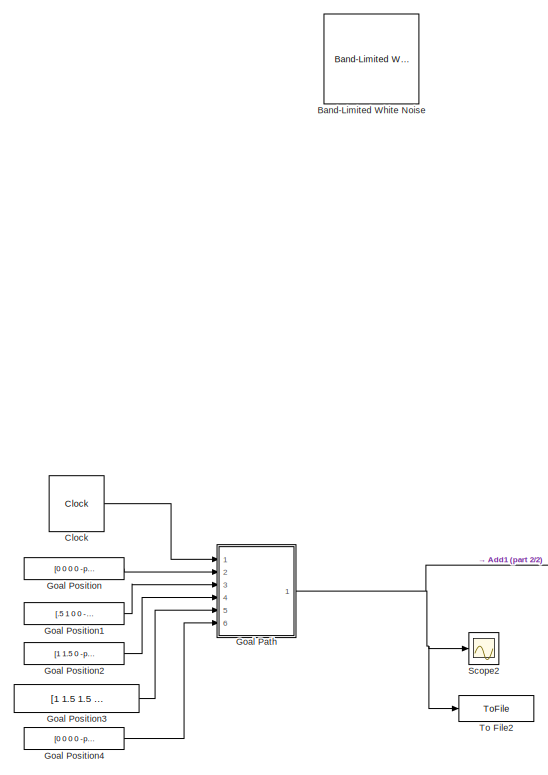
[diagram: root canvas - part 1/2, middle left region]
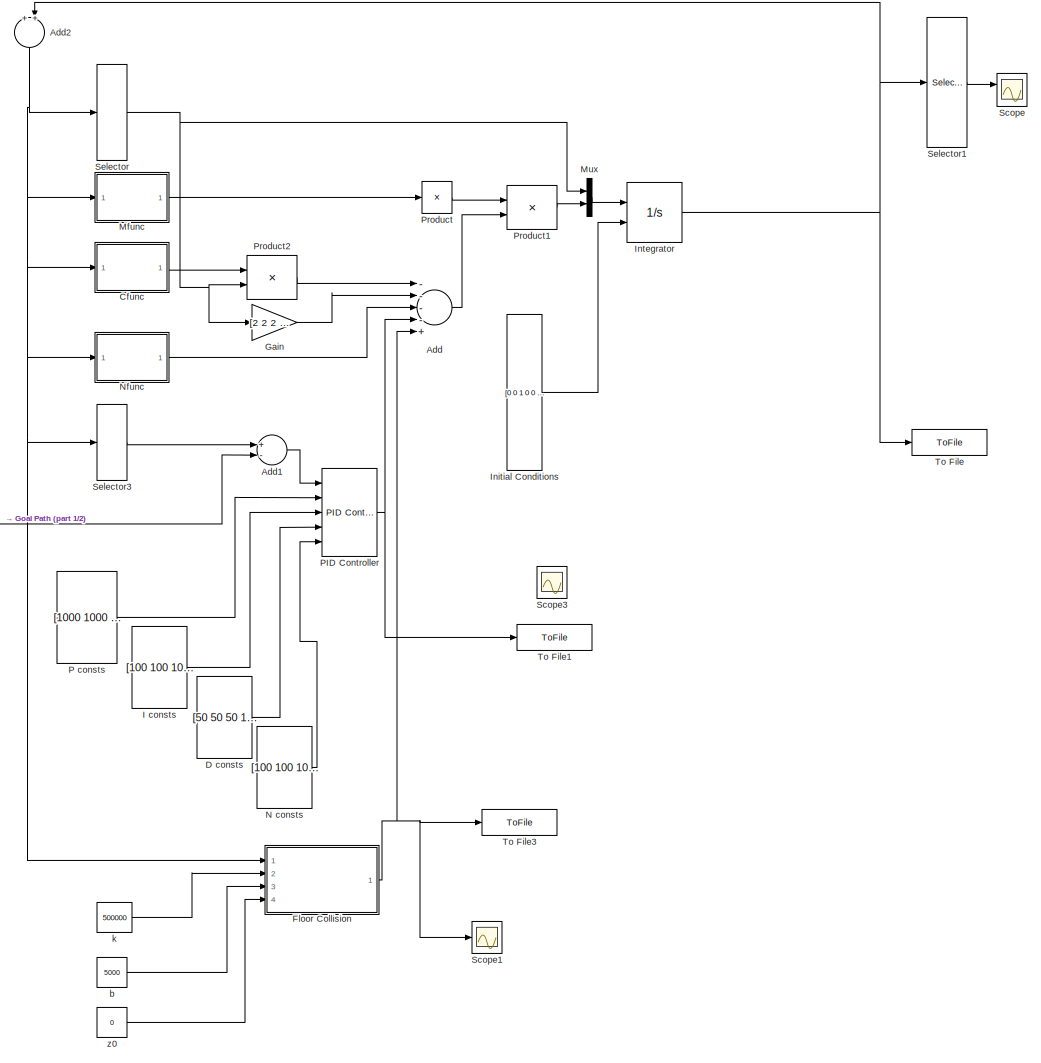
[diagram: root canvas - part 2/2, right side, full height]
MODEL slx_dd0f3a73de73
KIND model
CONFIG AbsTol = auto
CONFIG EnableMultiTasking = off
CONFIG FixedStep = auto
CONFIG MaxStep = auto
CONFIG MinStep = auto
CONFIG RelTol = 1e-3
CONFIG SampleTimeConstraint = Unconstrained
CONFIG Solver = VariableStepAuto
CONFIG SolverName = VariableStepAuto
CONFIG StartTime = 0.0
CONFIG StopTime = 10.0
BLOCK [Sum] Add
  InputSameDT = off
  Inputs = ----+
  OutDataTypeStr = Inherit: Inherit via internal rule
  Ports = [5, 1]
  SaturateOnIntegerOverflow = off
BLOCK [Sum] Add1
  InputSameDT = off
  Inputs = +-
  OutDataTypeStr = Inherit: Inherit via internal rule
  Ports = [2, 1]
  SaturateOnIntegerOverflow = off
BLOCK [Sum] Add2
  InputSameDT = off
  OutDataTypeStr = Inherit: Inherit via internal rule
  Ports = [2, 1]
  SaturateOnIntegerOverflow = off
BLOCK [Reference] Band-Limited White Noise  REF=simulink/Sources/Band-Limited
White Noise
  Ports = [0, 1]
  SourceBlock = simulink/Sources/Band-Limited\nWhite Noise
  SourceProductBaseCode = SL
  SourceProductName = Simulink
  SourceType = Band-Limited White Noise.
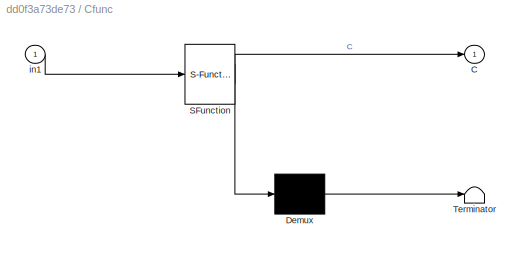
BLOCK [SubSystem] Cfunc
  ErrorFcn = Stateflow.Translate.translate
  PermitHierarchicalResolution = ExplicitOnly
  Ports = [1, 1]
  RequestExecContextInheritance = off
  SFBlockType = MATLAB Function
  TreatAsAtomicUnit = on
BLOCK [Demux] Cfunc/ Demux 
  Outputs = 1
  Ports = [1, 1]
BLOCK [S-Function] Cfunc/ SFunction 
  EnableBusSupport = on
  FunctionName = sf_sfun
  PortCounts = [1 2]
  Ports = [1, 2]
  SFcnIsStateOwnerBlock = off
  SFunctionDeploymentMode = off
  Tag = Stateflow S-Function mobilebot_Model 1
BLOCK [Terminator] Cfunc/ Terminator 
BLOCK [Outport] Cfunc/C
  IconDisplay = Port number
BLOCK [Inport] Cfunc/in1
  IconDisplay = Port number
BLOCK [Clock] Clock
BLOCK [Constant] D consts
  Value = [50 50 50 10 10 10]'
  VectorParams1D = off
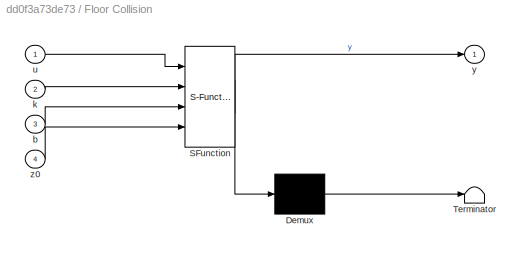
BLOCK [SubSystem] Floor Collision
  ErrorFcn = Stateflow.Translate.translate
  PermitHierarchicalResolution = ExplicitOnly
  Ports = [4, 1]
  RequestExecContextInheritance = off
  SFBlockType = MATLAB Function
  TreatAsAtomicUnit = on
BLOCK [Demux] Floor Collision/ Demux 
  Outputs = 1
  Ports = [1, 1]
BLOCK [S-Function] Floor Collision/ SFunction 
  EnableBusSupport = on
  FunctionName = sf_sfun
  PortCounts = [4 2]
  Ports = [4, 2]
  SFcnIsStateOwnerBlock = off
  SFunctionDeploymentMode = off
  Tag = Stateflow S-Function mobilebot_Model 4
BLOCK [Terminator] Floor Collision/ Terminator 
BLOCK [Inport] Floor Collision/b
  IconDisplay = Port number
  Port = 3
BLOCK [Inport] Floor Collision/k
  IconDisplay = Port number
  Port = 2
BLOCK [Inport] Floor Collision/u
  IconDisplay = Port number
BLOCK [Outport] Floor Collision/y
  IconDisplay = Port number
BLOCK [Inport] Floor Collision/z0
  IconDisplay = Port number
  Port = 4
BLOCK [Gain] Gain
  Gain = [2 2 2 8 8 8]'
  OutDataTypeStr = Inherit: Inherit via internal rule
  ParamDataTypeStr = Inherit: Inherit via internal rule
  SaturateOnIntegerOverflow = off
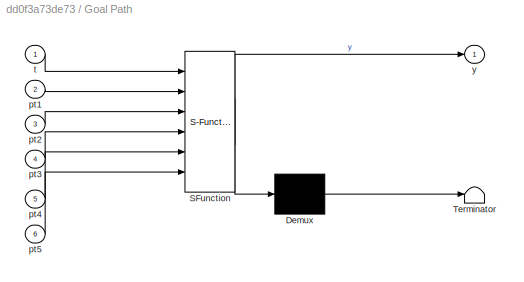
BLOCK [SubSystem] Goal Path
  ErrorFcn = Stateflow.Translate.translate
  PermitHierarchicalResolution = ExplicitOnly
  Ports = [6, 1]
  RequestExecContextInheritance = off
  SFBlockType = MATLAB Function
  TreatAsAtomicUnit = on
BLOCK [Demux] Goal Path/ Demux 
  Outputs = 1
  Ports = [1, 1]
BLOCK [S-Function] Goal Path/ SFunction 
  EnableBusSupport = on
  FunctionName = sf_sfun
  PortCounts = [6 2]
  Ports = [6, 2]
  SFcnIsStateOwnerBlock = off
  SFunctionDeploymentMode = off
  Tag = Stateflow S-Function mobilebot_Model 5
BLOCK [Terminator] Goal Path/ Terminator 
BLOCK [Inport] Goal Path/pt1
  IconDisplay = Port number
  Port = 2
BLOCK [Inport] Goal Path/pt2
  IconDisplay = Port number
  Port = 3
BLOCK [Inport] Goal Path/pt3
  IconDisplay = Port number
  Port = 4
BLOCK [Inport] Goal Path/pt4
  IconDisplay = Port number
  Port = 5
BLOCK [Inport] Goal Path/pt5
  IconDisplay = Port number
  Port = 6
BLOCK [Inport] Goal Path/t
  IconDisplay = Port number
BLOCK [Outport] Goal Path/y
  IconDisplay = Port number
BLOCK [Constant] Goal Position
  Value = [0 0 0 0 -pi/4 pi/4 ]'
  VectorParams1D = off
BLOCK [Constant] Goal Position1
  Value = [.5 1 0 0 -pi/2 pi/2 ]'
  VectorParams1D = off
BLOCK [Constant] Goal Position2
  Value = [1 1.5 0 -pi/3 -pi/3 pi ]'
  VectorParams1D = off
BLOCK [Constant] Goal Position3
  Value = [1 1.5 1.5 pi/2 -3*pi/2 pi/4 ]'
  VectorParams1D = off
BLOCK [Constant] Goal Position4
  Value = [0 0 0 0 -pi/4 pi/4 ]'
  VectorParams1D = off
BLOCK [Constant] I consts
  Value = [100 100 100 50 50 50]'
  VectorParams1D = off
BLOCK [Constant] Initial Conditions
  Value = [0 0 1 0 0 0 0 0 0 0 0 0]'
  VectorParams1D = off
BLOCK [Integrator] Integrator
  InitialConditionSource = external
  Ports = [2, 1]
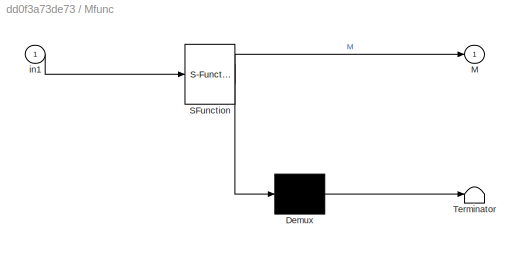
BLOCK [SubSystem] Mfunc
  ErrorFcn = Stateflow.Translate.translate
  PermitHierarchicalResolution = ExplicitOnly
  Ports = [1, 1]
  RequestExecContextInheritance = off
  SFBlockType = MATLAB Function
  TreatAsAtomicUnit = on
BLOCK [Demux] Mfunc/ Demux 
  Outputs = 1
  Ports = [1, 1]
BLOCK [S-Function] Mfunc/ SFunction 
  EnableBusSupport = on
  FunctionName = sf_sfun
  PortCounts = [1 2]
  Ports = [1, 2]
  SFcnIsStateOwnerBlock = off
  SFunctionDeploymentMode = off
  Tag = Stateflow S-Function mobilebot_Model 2
BLOCK [Terminator] Mfunc/ Terminator 
BLOCK [Outport] Mfunc/M
  IconDisplay = Port number
BLOCK [Inport] Mfunc/in1
  IconDisplay = Port number
BLOCK [Mux] Mux
  DisplayOption = bar
  Inputs = 2
  Ports = [2, 1]
BLOCK [Constant] N consts
  Value = [100 100 100 100 100 100]'
  VectorParams1D = off
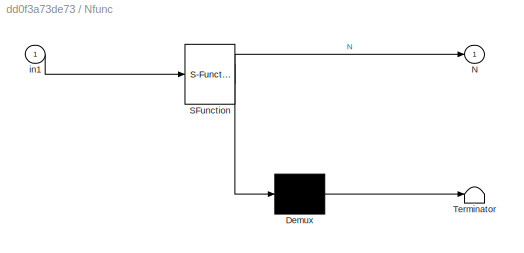
BLOCK [SubSystem] Nfunc
  ErrorFcn = Stateflow.Translate.translate
  PermitHierarchicalResolution = ExplicitOnly
  Ports = [1, 1]
  RequestExecContextInheritance = off
  SFBlockType = MATLAB Function
  TreatAsAtomicUnit = on
BLOCK [Demux] Nfunc/ Demux 
  Outputs = 1
  Ports = [1, 1]
BLOCK [S-Function] Nfunc/ SFunction 
  EnableBusSupport = on
  FunctionName = sf_sfun
  PortCounts = [1 2]
  Ports = [1, 2]
  SFcnIsStateOwnerBlock = off
  SFunctionDeploymentMode = off
  Tag = Stateflow S-Function mobilebot_Model 3
BLOCK [Terminator] Nfunc/ Terminator 
BLOCK [Outport] Nfunc/N
  IconDisplay = Port number
BLOCK [Inport] Nfunc/in1
  IconDisplay = Port number
BLOCK [Constant] P consts
  Value = [1000 1000 1000 200 200 200]'
  VectorParams1D = off
BLOCK [Reference] PID Controller  REF=simulink/Continuous/PID Controller
  Ports = [5, 1]
  SourceBlock = simulink/Continuous/PID Controller
  SourceProductBaseCode = SL
  SourceProductName = Simulink
  SourceType = PID 1dof
BLOCK [Product] Product
  InputSameDT = off
  Inputs = /
  Multiplication = Matrix(*)
  OutDataTypeStr = Inherit: Inherit via internal rule
  Ports = [1, 1]
  RndMeth = Floor
  SaturateOnIntegerOverflow = off
BLOCK [Product] Product1
  InputSameDT = off
  Inputs = **
  Multiplication = Matrix(*)
  OutDataTypeStr = Inherit: Inherit via internal rule
  Ports = [2, 1]
  RndMeth = Floor
  SaturateOnIntegerOverflow = off
BLOCK [Product] Product2
  InputSameDT = off
  Inputs = **
  Multiplication = Matrix(*)
  OutDataTypeStr = Inherit: Inherit via internal rule
  Ports = [2, 1]
  RndMeth = Floor
  SaturateOnIntegerOverflow = off
BLOCK [Scope] Scope
  Floating = off
  NumInputPorts = 2
  Ports = [2]
  ScopeSpecificationString = Simulink.scopes.TimeScopeBlockCfg('CurrentConfiguration', extmgr.ConfigurationSet(extmgr.Configuration('Core','General UI',true),extmgr.Configuration('Core','Source UI',true),extmgr.Configuration('Sources','WiredSimulink',true),extmgr.Configuration('Visuals','Time Domain',true,'SerializedDisplays',{struct('MinYLimReal','-6.13615','MaxYLimReal','4.12733','YLabelReal','','MinYLimMag','0.00000','MaxY...<+1443ch>
BLOCK [Scope] Scope1
  Floating = off
  NumInputPorts = 1
  Ports = [1]
  ScopeSpecificationString = Simulink.scopes.TimeScopeBlockCfg('CurrentConfiguration', extmgr.ConfigurationSet(extmgr.Configuration('Core','General UI',true),extmgr.Configuration('Core','Source UI',true),extmgr.Configuration('Sources','WiredSimulink',true,'DataLoggingVariableName','FloorCollisionData','DataLogging',true,'DataLoggingSaveFormat','Array'),extmgr.Configuration('Visuals','Time Domain',true,'SerializedDisplays',{st...<+1565ch>
BLOCK [Scope] Scope2
  Floating = off
  NumInputPorts = 1
  Ports = [1]
  ScopeSpecificationString = Simulink.scopes.TimeScopeBlockCfg('CurrentConfiguration', extmgr.ConfigurationSet(extmgr.Configuration('Core','General UI',true),extmgr.Configuration('Core','Source UI',true),extmgr.Configuration('Sources','WiredSimulink',true,'DataLoggingVariableName','GoalPathData','DataLogging',true,'DataLoggingSaveFormat','Array'),extmgr.Configuration('Visuals','Time Domain',true,'SerializedDisplays',{struct('...<+1548ch>
BLOCK [Scope] Scope3
  Floating = off
  NumInputPorts = 1
  Ports = [1]
  ScopeSpecificationString = Simulink.scopes.TimeScopeBlockCfg('CurrentConfiguration', extmgr.ConfigurationSet(extmgr.Configuration('Core','General UI',true),extmgr.Configuration('Core','Source UI',true),extmgr.Configuration('Sources','WiredSimulink',true,'DataLoggingVariableName','PIDTorques','DataLogging',true,'DataLoggingSaveFormat','Array'),extmgr.Configuration('Visuals','Time Domain',true,'SerializedDisplays',{struct('Mi...<+1547ch>
BLOCK [Selector] Selector
  IndexOptions = Index vector (dialog)
  Indices = [7 8 9 10 11 12]
  InputPortWidth = 12
  OutputSizes = 1
  Ports = [1, 1]
BLOCK [Selector] Selector1
  IndexOptions = Index vector (dialog)
  Indices = [1 2 3 4 5 6]
  InputPortWidth = 12
  OutputSizes = 1
  Ports = [1, 1]
BLOCK [Selector] Selector3
  IndexOptions = Index vector (dialog)
  Indices = [1 2 3 4 5 6]
  InputPortWidth = 12
  OutputSizes = 1
  Ports = [1, 1]
BLOCK [ToFile] To File
  Filename = sim_mobilebot.mat
  Ports = [1]
  SampleTime = 1/30
BLOCK [ToFile] To File1
  Filename = PIDData.mat
  Ports = [1]
  SampleTime = 1/30
BLOCK [ToFile] To File2
  Filename = GoalData.mat
  Ports = [1]
  SampleTime = 1/30
BLOCK [ToFile] To File3
  Filename = FloorCollisionData.mat
  Ports = [1]
  SampleTime = 1/30
BLOCK [Constant] b 
  Value = 5000
BLOCK [Constant] k 
  Value = 500000
BLOCK [Constant] z0
  Value = 0
LINE Add1:1 -> PID Controller:1
NET Add2:1 -> Cfunc:1, Floor Collision:1, Mfunc:1, Nfunc:1, Selector3:1, Selector:1
LINE Add:1 -> Product1:2
LINE Cfunc:1 -> Product2:1
LINE Clock:1 -> Goal Path:1
LINE D consts:1 -> PID Controller:4
NET Floor Collision:1 -> Add:5, Scope1:1, To File3:1
LINE Gain:1 -> Add:2
NET Goal Path:1 -> Add1:2, Scope2:1, To File2:1
LINE Goal Position1:1 -> Goal Path:3
LINE Goal Position2:1 -> Goal Path:4
LINE Goal Position3:1 -> Goal Path:5
LINE Goal Position4:1 -> Goal Path:6
LINE Goal Position:1 -> Goal Path:2
LINE I consts:1 -> PID Controller:3
LINE Initial Conditions:1 -> Integrator:2
NET Integrator:1 -> Add2:2, Selector1:1, To File:1
LINE Mfunc:1 -> Product:1
LINE Mux:1 -> Integrator:1
LINE N consts:1 -> PID Controller:5
LINE Nfunc:1 -> Add:3
LINE P consts:1 -> PID Controller:2
NET PID Controller:1 -> Add:4, To File1:1
LINE Product1:1 -> Mux:2
LINE Product2:1 -> Add:1
LINE Product:1 -> Product1:1
LINE Selector1:1 -> Scope:1
LINE Selector3:1 -> Add1:1
NET Selector:1 -> Gain:1, Mux:1, Product2:2
LINE b :1 -> Floor Collision:3
LINE k :1 -> Floor Collision:2
LINE z0:1 -> Floor Collision:4
note: NET lines group one-source signal fan-out (src -> all destinations, sorted); 1:1 wires keep LINE
CHART Cfunc states=1 transitions=1
  STATE_LABEL 'eML_blk_kernel()'
  STATE_LABEL 'SCRIPT:\nfunction C = Cfunc(in1)\n%#codegen\n\n%    This function was generated by the Symbolic Math Toolbox version 8.1.\n%    10-May-2018 12:26:45\n\nth4 = in1(4,:);\nth5 = in1(5,:);\nth6 = in1(6,:);\nth4d = in1(10,:);\nth5d = in1(11,:);\nth6d = in1(12,:);\nt2 = cos(th4);\nt3 = cos(th5);\nt4 = sin(th4);\nt5 = cos(th6);\nt6 = sin(th5);\nt7 = sin(th6);\nt8 = t2.*t3.*t7.*th4d.*(2.7e1./8.0);\nt9 = t2.*t5.*t6.*th4d.*(2....<+2155ch>'
CHART Mfunc states=1 transitions=1
  STATE_LABEL 'eML_blk_kernel()'
  STATE_LABEL 'SCRIPT:\nfunction M = Mfunc(in1)\n%#codegen\n\n%    This function was generated by the Symbolic Math Toolbox version 8.1.\n%    10-May-2018 12:26:45\n\nth4 = in1(4,:);\nth5 = in1(5,:);\nth6 = in1(6,:);\nt2 = cos(th4);\nt3 = cos(th5);\nt4 = sin(th4);\nt5 = sin(th5);\nt6 = th5+th6;\nt7 = sin(t6);\nt8 = sin(th6);\nt9 = cos(th6);\nt10 = t5.*3.0;\nt11 = t7+t10;\nt12 = cos(t6);\nt13 = t4.*(5.13e2./1.0e2);\nt14 = t2.*t5.*t8.*...<+833ch>'
CHART Nfunc states=1 transitions=1
  STATE_LABEL 'eML_blk_kernel()'
  STATE_LABEL 'SCRIPT:\nfunction N = Nfunc(in1)\n%#codegen\n\n%    This function was generated by the Symbolic Math Toolbox version 8.1.\n%    10-May-2018 12:26:45\n\nth5 = in1(5,:);\nth6 = in1(6,:);\nt2 = th5+th6;\nt3 = cos(t2);\nN = [0.0;0.0;1.566e3;0.0;t3.*(-1.35e2./4.0)-cos(th5).*(4.05e2./4.0);t3.*(-1.35e2./4.0)];\n'
CHART Floor Collision states=1 transitions=1
  STATE_LABEL 'eML_blk_kernel()'
  STATE_LABEL "SCRIPT:\nfunction y = floorSpringDamper(u, k, b, z0)\n\ny = zeros(6,1); %set output equal to zero\n\nif u(3) < z0 % if we're below z0\n    \n    y(3) = -k*(u(3)-z0) - b*u(9); %spring + damper force response\n    \nend\n\n\n"
CHART Goal Path states=1 transitions=1
  STATE_LABEL 'eML_blk_kernel()'
  STATE_LABEL 'SCRIPT:\nfunction y = path(t, pt1, pt2, pt3, pt4, pt5)\n% Generate current desired position as defined in this path function\ny = zeros(6,1);\ntlength = linspace(0, 10, 5);\npt = [pt1 pt2 pt3 pt4 pt5];\np1 = polyfit(tlength,pt(1,:),4);\np2 = polyfit(tlength,pt(2,:),4);\np3 = polyfit(tlength,pt(3,:),4);\np4 = polyfit(tlength,pt(4,:),4);\np5 = polyfit(tlength,pt(5,:),4);\np6 = polyfit(tlength,pt(6,:),4);\n\n\ny =...<+559ch>'
